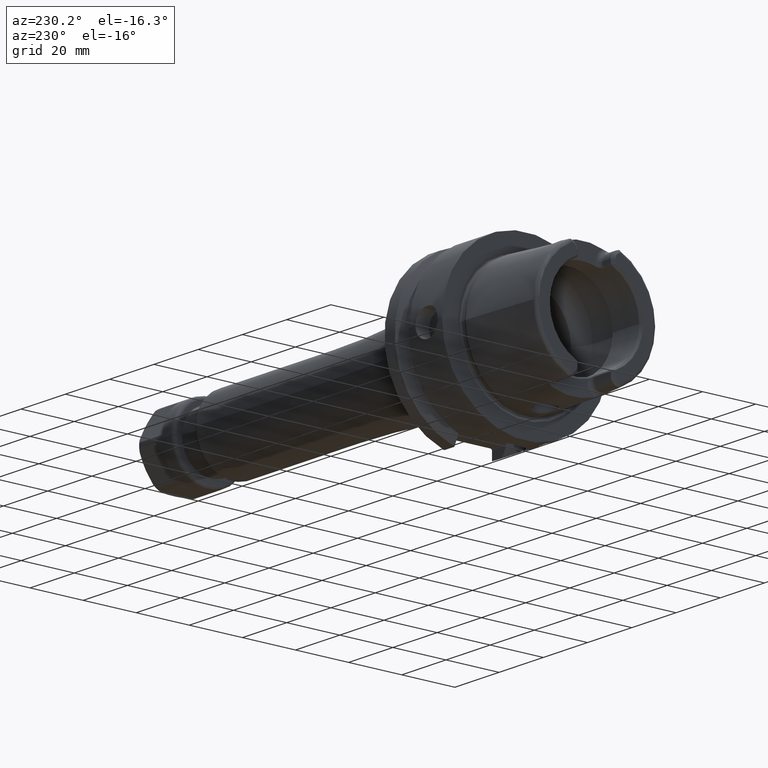
[diagram: clean part render]
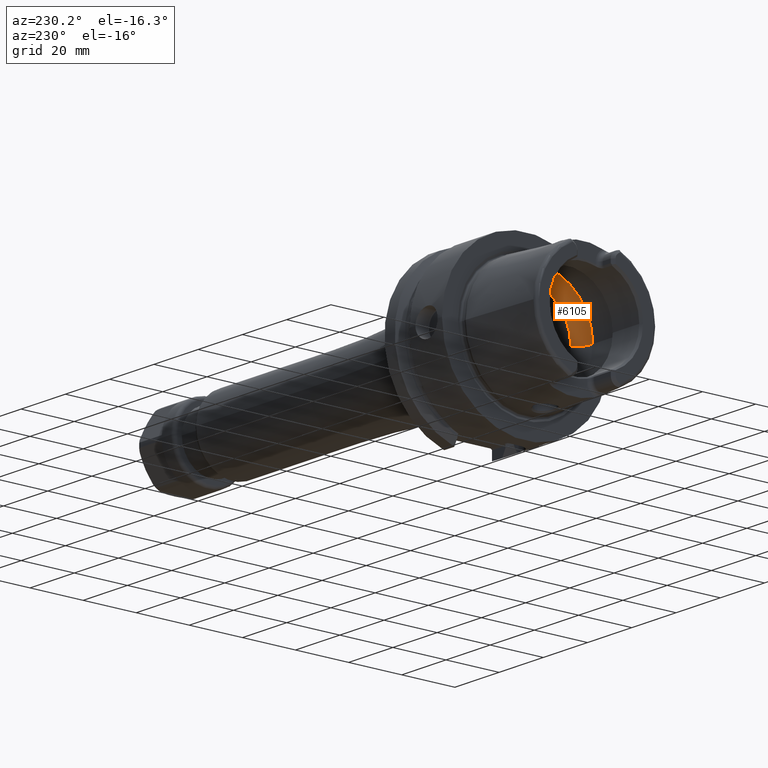
[diagram: same view with one face highlighted and labeled with its STEP entity id]
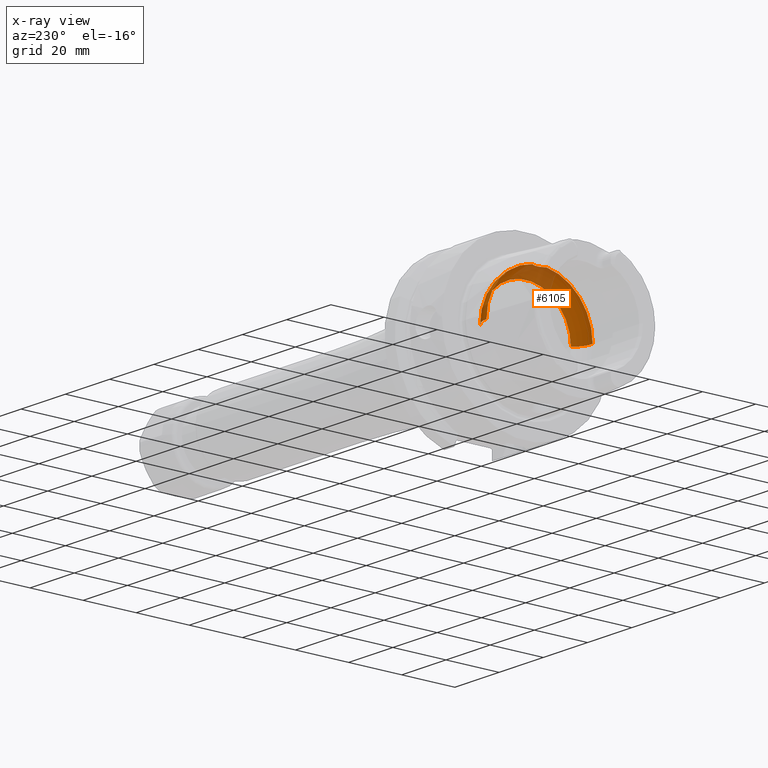
[diagram: x-ray of the same camera — body ghosted, the highlighted face saturated]
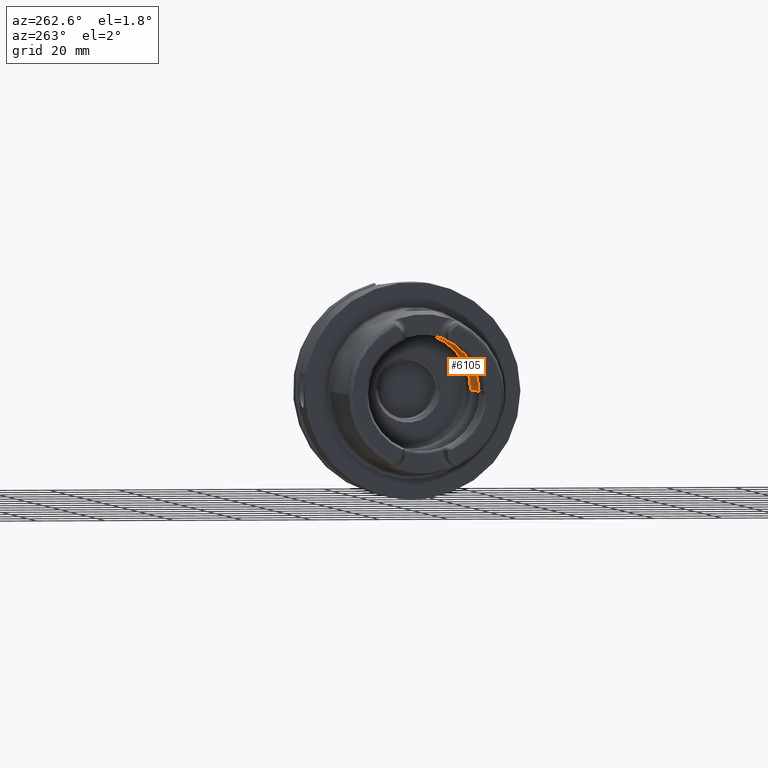
[diagram: same view with one face highlighted and labeled with its STEP entity id]
A machine part, auxiliary view. The second image highlights one B-rep face of the part: STEP entity #6105.
The next image is the same camera in x-ray: the body ghosted, the highlighted face saturated — about 25% of this face is hidden behind the body in this view.
A second angle (auxiliary view) of the same face is appended — the face is thin or edge-on in the first view.
In plain terms, the highlighted toroidal blend (fillet) surface has major radius 12 mm and minor (blend) radius 8 mm.
Its self-contained STEP definition (entity closure, byte-faithful):
#2306=CARTESIAN_POINT('',(-5.25E0,0.E0,1.992470689575E1));
#2307=CARTESIAN_POINT('',(-5.25E0,1.634249880127E-1,1.992470689575E1));
#2308=CARTESIAN_POINT('',(-5.271317000323E0,4.905125142286E-1,
1.992366860007E1));
#2309=CARTESIAN_POINT('',(-5.367938073203E0,9.753406287590E-1,
1.991846757388E1));
#2310=CARTESIAN_POINT('',(-5.525913254439E0,1.440181253243E0,1.990841194030E1));
#2311=CARTESIAN_POINT('',(-5.745012466850E0,1.883704211740E0,1.989126222791E1));
#2312=CARTESIAN_POINT('',(-6.017092970824E0,2.289932260455E0,1.986481338490E1));
#2313=CARTESIAN_POINT('',(-6.231037578916E0,2.534045566496E0,1.983915065875E1));
#2314=CARTESIAN_POINT('',(-6.344997998398E0,2.648294615690E0,1.982388800484E1));
#2316=CARTESIAN_POINT('',(-6.344997998398E0,-2.648294615690E0,
1.982388800484E1));
#2317=CARTESIAN_POINT('',(-6.231045843136E0,-2.534053851646E0,
1.983914955193E1));
#2318=CARTESIAN_POINT('',(-6.017093742818E0,-2.289943440357E0,
1.986481395775E1));
#2319=CARTESIAN_POINT('',(-5.744901596897E0,-1.883527876206E0,
1.989127237006E1));
#2320=CARTESIAN_POINT('',(-5.525828432433E0,-1.439963272778E0,
1.990841763195E1));
#2321=CARTESIAN_POINT('',(-5.367908372542E0,-9.752317929729E-1,
1.991846926373E1));
#2322=CARTESIAN_POINT('',(-5.271289109403E0,-4.903031116233E-1,
1.992367002777E1));
#2323=CARTESIAN_POINT('',(-5.25E0,-1.633414179458E-1,1.992470689575E1));
#2324=CARTESIAN_POINT('',(-5.25E0,0.E0,1.992470689575E1));
#2326=CARTESIAN_POINT('',(-1.E-1,0.E0,0.E0));
#2327=DIRECTION('',(1.E0,0.E0,0.E0));
#2328=DIRECTION('',(0.E0,1.E0,0.E0));
#2329=AXIS2_PLACEMENT_3D('',#2326,#2327,#2328);
#2351=CARTESIAN_POINT('',(-6.344997998398E0,0.E0,0.E0));
#2352=DIRECTION('',(1.E0,0.E0,0.E0));
#2353=DIRECTION('',(0.E0,1.E0,0.E0));
#2354=AXIS2_PLACEMENT_3D('',#2351,#2352,#2353);
#2356=CARTESIAN_POINT('',(-6.344997998398E0,0.E0,0.E0));
#2357=DIRECTION('',(1.E0,0.E0,0.E0));
#2358=DIRECTION('',(0.E0,-1.324147307845E-1,9.911944002421E-1));
#2359=AXIS2_PLACEMENT_3D('',#2356,#2357,#2358);
#2449=CARTESIAN_POINT('',(-6.344997998398E0,1.2E1,0.E0));
#2450=DIRECTION('',(0.E0,0.E0,1.E0));
#2451=DIRECTION('',(7.806247497998E-1,6.25E-1,0.E0));
#2452=AXIS2_PLACEMENT_3D('',#2449,#2450,#2451);
#2459=CARTESIAN_POINT('',(-6.344997998398E0,-1.2E1,0.E0));
#2460=DIRECTION('',(0.E0,0.E0,-1.E0));
#2461=DIRECTION('',(7.806247497998E-1,-6.25E-1,0.E0));
#2462=AXIS2_PLACEMENT_3D('',#2459,#2460,#2461);
#2728=CARTESIAN_POINT('',(-1.E-1,1.7E1,0.E0));
#2729=VERTEX_POINT('',#2728);
#2730=CARTESIAN_POINT('',(-6.344997998398E0,2.E1,0.E0));
#2731=VERTEX_POINT('',#2730);
#2740=CARTESIAN_POINT('',(-1.E-1,-1.7E1,0.E0));
#2741=VERTEX_POINT('',#2740);
#2742=CARTESIAN_POINT('',(-6.344997998398E0,-2.E1,0.E0));
#2743=VERTEX_POINT('',#2742);
#2911=VERTEX_POINT('',#2306);
#2912=VERTEX_POINT('',#2314);
#2913=VERTEX_POINT('',#2316);
#6086=CARTESIAN_POINT('',(-6.344997998398E0,0.E0,0.E0));
#6087=DIRECTION('',(1.E0,0.E0,0.E0));
#6088=DIRECTION('',(0.E0,-1.E0,0.E0));
#6089=AXIS2_PLACEMENT_3D('',#6086,#6087,#6088);
#6090=TOROIDAL_SURFACE('',#6089,1.2E1,8.E0);
#6091=ORIENTED_EDGE('',*,*,#6063,.F.);
#6092=ORIENTED_EDGE('',*,*,#5829,.F.);
#6094=ORIENTED_EDGE('',*,*,#6093,.T.);
#6096=ORIENTED_EDGE('',*,*,#6095,.F.);
#6098=ORIENTED_EDGE('',*,*,#6097,.F.);
#6100=ORIENTED_EDGE('',*,*,#6099,.T.);
#6102=ORIENTED_EDGE('',*,*,#6101,.T.);
#6103=EDGE_LOOP('',(#6091,#6092,#6094,#6096,#6098,#6100,#6102));
#6104=FACE_OUTER_BOUND('',#6103,.F.);
#6105=ADVANCED_FACE('',(#6104),#6090,.F.);
#2315=B_SPLINE_CURVE_WITH_KNOTS('',3,(#2306,#2307,#2308,#2309,#2310,#2311,#2312,
#2313,#2314),.UNSPECIFIED.,.F.,.F.,(4,1,1,1,1,1,4),(0.E0,1.666666666667E-1,
3.333333333333E-1,5.E-1,6.666666666667E-1,8.333333333333E-1,1.E0),
.UNSPECIFIED.);
#2325=B_SPLINE_CURVE_WITH_KNOTS('',3,(#2316,#2317,#2318,#2319,#2320,#2321,#2322,
#2323,#2324),.UNSPECIFIED.,.F.,.F.,(4,1,1,1,1,1,4),(0.E0,1.666666666667E-1,
3.333333333333E-1,5.E-1,6.666666666667E-1,8.333333333333E-1,1.E0),
.UNSPECIFIED.);
#2330=CIRCLE('',#2329,1.7E1);
#2355=CIRCLE('',#2354,2.E1);
#2360=CIRCLE('',#2359,2.E1);
#2453=CIRCLE('',#2452,8.E0);
#2463=CIRCLE('',#2462,8.E0);
#5829=EDGE_CURVE('',#2913,#2911,#2325,.T.);
#6063=EDGE_CURVE('',#2911,#2912,#2315,.T.);
#6093=EDGE_CURVE('',#2913,#2743,#2360,.T.);
#6095=EDGE_CURVE('',#2741,#2743,#2463,.T.);
#6097=EDGE_CURVE('',#2729,#2741,#2330,.T.);
#6099=EDGE_CURVE('',#2729,#2731,#2453,.T.);
#6101=EDGE_CURVE('',#2731,#2912,#2355,.T.);